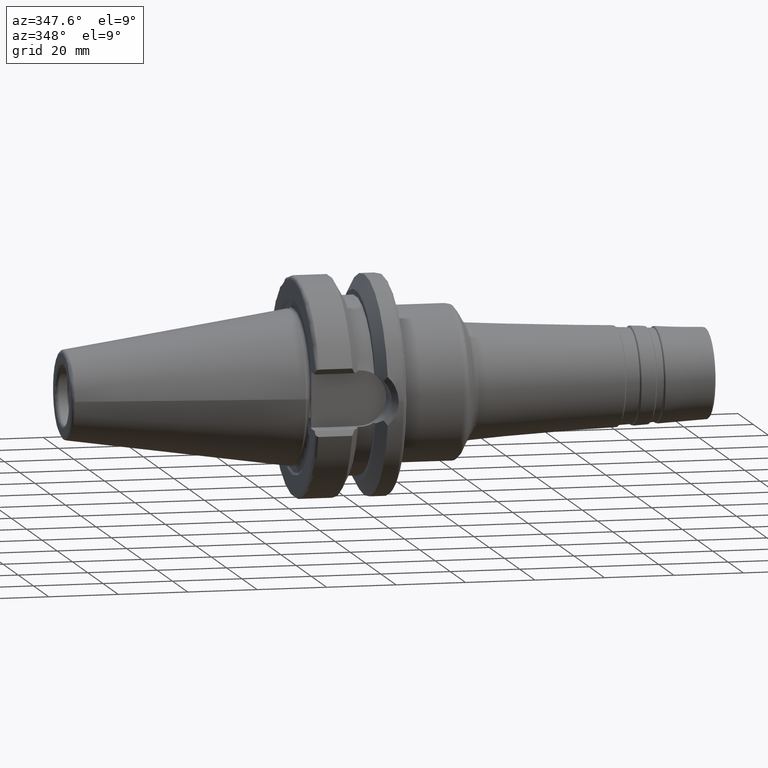
[diagram: clean part render]
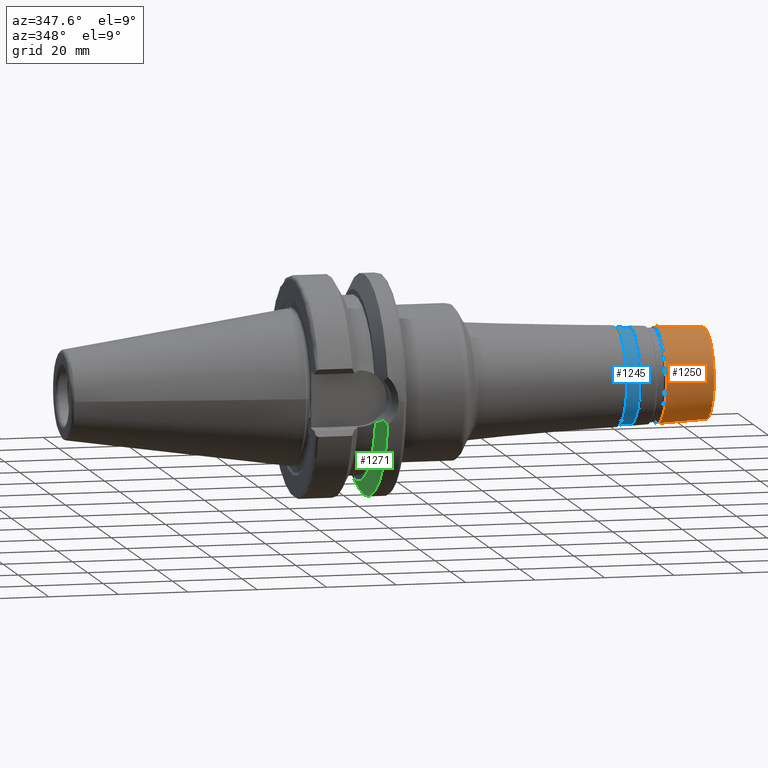
[diagram: same view with three faces highlighted in distinct colors, each labeled with its STEP entity id]
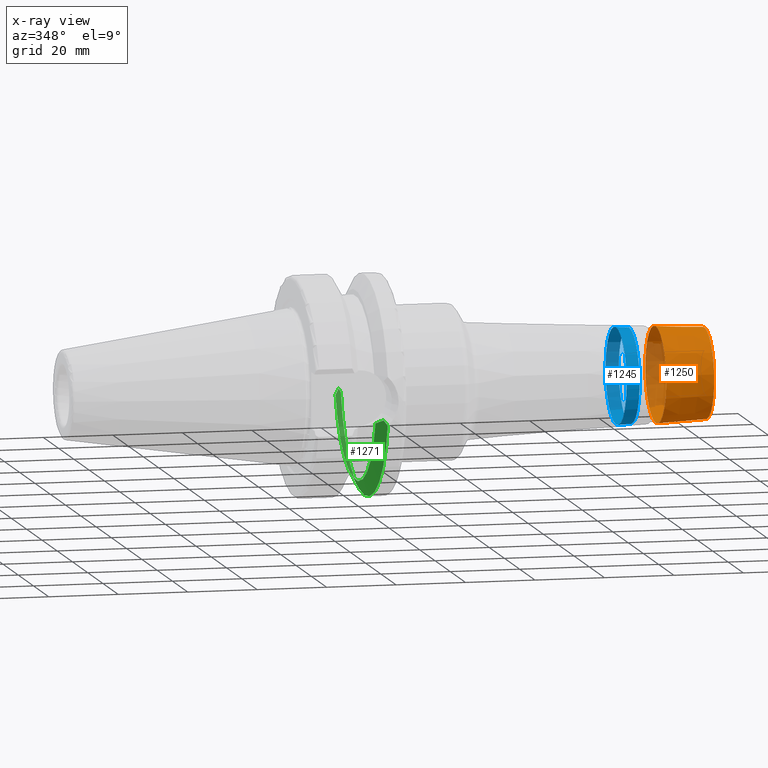
[diagram: x-ray of the same camera — body ghosted, the three highlighted faces saturated]
A machine part, auxiliary view with three faces highlighted in distinct colors.
The next image is the same camera in x-ray (body ghosted, the three faces saturated) — at least one of them is partly hidden behind the body in this view.
Their STEP definitions:

[orange] entity #1250 — the highlighted conical surface has half-angle 3 deg.
#102=LINE('',#1982,#171);
#171=VECTOR('',#1585,13.3848185972057);
#240=CONICAL_SURFACE('',#1372,13.3848185972057,0.0523598775598296);
#266=FACE_OUTER_BOUND('',#347,.T.);
#347=EDGE_LOOP('',(#875,#876,#877,#878));
#439=CIRCLE('',#1370,13.7575507230413);
#441=CIRCLE('',#1373,13.0248324840198);
#528=VERTEX_POINT('',#1976);
#529=VERTEX_POINT('',#1980);
#658=EDGE_CURVE('',#528,#528,#439,.T.);
#660=EDGE_CURVE('',#529,#529,#441,.T.);
#661=EDGE_CURVE('',#529,#528,#102,.T.);
#875=ORIENTED_EDGE('',*,*,#660,.F.);
#876=ORIENTED_EDGE('',*,*,#661,.T.);
#877=ORIENTED_EDGE('',*,*,#658,.F.);
#878=ORIENTED_EDGE('',*,*,#661,.F.);
#1250=ADVANCED_FACE('',(#266),#240,.T.);
#1370=AXIS2_PLACEMENT_3D('',#1977,#1577,#1578);
#1372=AXIS2_PLACEMENT_3D('',#1979,#1581,#1582);
#1373=AXIS2_PLACEMENT_3D('',#1981,#1583,#1584);
#1577=DIRECTION('center_axis',(-1.,0.,0.));
#1578=DIRECTION('ref_axis',(0.,0.,1.));
#1581=DIRECTION('center_axis',(-1.,0.,0.));
#1582=DIRECTION('ref_axis',(0.,0.,-1.));
#1583=DIRECTION('center_axis',(1.,0.,0.));
#1584=DIRECTION('ref_axis',(0.,0.,1.));
#1585=DIRECTION('',(-0.998629534754574,-6.40930612932368E-18,0.0523359562429436));
#1976=CARTESIAN_POINT('',(105.545071105762,-1.68481404570799E-15,13.7575507230413));
#1977=CARTESIAN_POINT('Origin',(105.545071105762,-1.68481404570799E-15,
0.));
#1979=CARTESIAN_POINT('Origin',(112.657223746739,0.,0.));
#1980=CARTESIAN_POINT('',(119.526167978121,-1.59508194109854E-15,13.0248324840198));
#1981=CARTESIAN_POINT('Origin',(119.526167978121,-1.59508194109854E-15,
0.));
#1982=CARTESIAN_POINT('',(112.657223746739,-1.63916752522359E-15,13.3848185972057));

[blue] entity #1245 — the highlighted conical surface has half-angle 3 deg.
#99=LINE('',#1961,#168);
#168=VECTOR('',#1556,13.7564541224331);
#237=CONICAL_SURFACE('',#1360,13.7564541224331,0.0523598775598302);
#261=FACE_OUTER_BOUND('',#342,.T.);
#342=EDGE_LOOP('',(#855,#856,#857,#858));
#431=CIRCLE('',#1357,13.6578254456323);
#434=CIRCLE('',#1361,13.855082799234);
#522=VERTEX_POINT('',#1954);
#524=VERTEX_POINT('',#1960);
#647=EDGE_CURVE('',#522,#522,#431,.T.);
#650=EDGE_CURVE('',#522,#524,#99,.T.);
#651=EDGE_CURVE('',#524,#524,#434,.T.);
#855=ORIENTED_EDGE('',*,*,#647,.F.);
#856=ORIENTED_EDGE('',*,*,#650,.T.);
#857=ORIENTED_EDGE('',*,*,#651,.F.);
#858=ORIENTED_EDGE('',*,*,#650,.F.);
#1245=ADVANCED_FACE('',(#261),#237,.T.);
#1357=AXIS2_PLACEMENT_3D('',#1955,#1548,#1549);
#1360=AXIS2_PLACEMENT_3D('',#1959,#1554,#1555);
#1361=AXIS2_PLACEMENT_3D('',#1962,#1557,#1558);
#1548=DIRECTION('center_axis',(1.,0.,0.));
#1549=DIRECTION('ref_axis',(0.,0.,1.));
#1554=DIRECTION('center_axis',(-1.,0.,0.));
#1555=DIRECTION('ref_axis',(0.,0.,-1.));
#1556=DIRECTION('',(-0.998629534754574,-6.40930612932375E-18,0.0523359562429442));
#1557=DIRECTION('center_axis',(-1.,0.,0.));
#1558=DIRECTION('ref_axis',(0.,0.,1.));
#1954=CARTESIAN_POINT('',(97.8942814505757,-1.67260122153069E-15,13.6578254456323));
#1955=CARTESIAN_POINT('Origin',(97.8942814505757,-1.67260122153069E-15,
0.));
#1959=CARTESIAN_POINT('Origin',(96.0123341872088,0.,0.));
#1960=CARTESIAN_POINT('',(94.1303869238419,-1.69675828020035E-15,13.855082799234));
#1961=CARTESIAN_POINT('',(96.0123341872088,-1.68467975086552E-15,13.7564541224331));
#1962=CARTESIAN_POINT('Origin',(94.1303869238419,-1.69675828020035E-15,
0.));

[green] entity #1271 — the highlighted conical surface has half-angle 60.125 deg.
#27=B_SPLINE_CURVE_WITH_KNOTS('',3,(#2091,#2092,#2093,#2094,#2095,#2096,
#2097,#2098,#2099,#2100,#2101,#2102,#2103),.UNSPECIFIED.,.F.,.F.,(4,3,3,
3,4),(0.,0.0663857987262874,0.104853023511296,0.177953491129426,0.209498394876945),
 .UNSPECIFIED.);
#33=B_SPLINE_CURVE_WITH_KNOTS('',3,(#2163,#2164,#2165,#2166,#2167,#2168),
 .UNSPECIFIED.,.F.,.F.,(4,2,4),(3.3443816511031,3.62699288756974,3.70848737461385),
 .UNSPECIFIED.);
#34=B_SPLINE_CURVE_WITH_KNOTS('',3,(#2172,#2173,#2174,#2175,#2176,#2177),
 .UNSPECIFIED.,.F.,.F.,(4,2,4),(1.4642102789956,1.54570476603971,1.82831600250635),
 .UNSPECIFIED.);
#35=B_SPLINE_CURVE_WITH_KNOTS('',3,(#2178,#2179,#2180,#2181,#2182,#2183,
#2184,#2185,#2186,#2187,#2188,#2189,#2190),.UNSPECIFIED.,.F.,.F.,(4,3,3,
3,4),(1.38777878078145E-17,0.0731680095135469,0.104649820620959,0.171142802075839,
0.209508940919759),.UNSPECIFIED.);
#244=CONICAL_SURFACE('',#1423,29.2970358274569,1.04937921276159);
#287=FACE_OUTER_BOUND('',#372,.T.);
#372=EDGE_LOOP('',(#960,#961,#962,#963,#964,#965));
#469=CIRCLE('',#1420,31.5000000000001);
#472=CIRCLE('',#1424,27.0940716549138);
#549=VERTEX_POINT('',#2089);
#550=VERTEX_POINT('',#2090);
#556=VERTEX_POINT('',#2147);
#558=VERTEX_POINT('',#2162);
#559=VERTEX_POINT('',#2169);
#560=VERTEX_POINT('',#2171);
#695=EDGE_CURVE('',#549,#550,#27,.T.);
#702=EDGE_CURVE('',#550,#556,#469,.T.);
#706=EDGE_CURVE('',#549,#558,#33,.T.);
#707=EDGE_CURVE('',#558,#559,#472,.T.);
#708=EDGE_CURVE('',#559,#560,#34,.T.);
#709=EDGE_CURVE('',#556,#560,#35,.T.);
#960=ORIENTED_EDGE('',*,*,#695,.F.);
#961=ORIENTED_EDGE('',*,*,#706,.T.);
#962=ORIENTED_EDGE('',*,*,#707,.T.);
#963=ORIENTED_EDGE('',*,*,#708,.T.);
#964=ORIENTED_EDGE('',*,*,#709,.F.);
#965=ORIENTED_EDGE('',*,*,#702,.F.);
#1271=ADVANCED_FACE('',(#287),#244,.T.);
#1420=AXIS2_PLACEMENT_3D('',#2148,#1686,#1687);
#1423=AXIS2_PLACEMENT_3D('',#2161,#1692,#1693);
#1424=AXIS2_PLACEMENT_3D('',#2170,#1694,#1695);
#1686=DIRECTION('center_axis',(1.,0.,0.));
#1687=DIRECTION('ref_axis',(0.,0.,-1.));
#1692=DIRECTION('center_axis',(1.,0.,0.));
#1693=DIRECTION('ref_axis',(0.,1.,0.));
#1694=DIRECTION('center_axis',(1.,0.,0.));
#1695=DIRECTION('ref_axis',(0.,0.,-1.));
#2089=CARTESIAN_POINT('',(20.7197593187301,-29.382324732277,-5.61358863864523));
#2090=CARTESIAN_POINT('',(21.6309636926619,-30.7261128229805,-6.93945176433102));
#2091=CARTESIAN_POINT('Ctrl Pts',(20.7197657819788,-29.3823237299493,-5.61358132195236));
#2092=CARTESIAN_POINT('Ctrl Pts',(20.8148408821884,-29.5238838511283,-5.7546101488345));
#2093=CARTESIAN_POINT('Ctrl Pts',(20.9104055783237,-29.6657166596105,-5.89544203107064));
#2094=CARTESIAN_POINT('Ctrl Pts',(21.0063031067432,-29.8076037972815,-6.03588995803085));
#2095=CARTESIAN_POINT('Ctrl Pts',(21.0618708916131,-29.8898202430217,-6.11727245369445));
#2096=CARTESIAN_POINT('Ctrl Pts',(21.1175496497856,-29.9720546777218,-6.19852652970694));
#2097=CARTESIAN_POINT('Ctrl Pts',(21.1733023497016,-30.0542624823723,-6.27961994688687));
#2098=CARTESIAN_POINT('Ctrl Pts',(21.2792509450996,-30.2104845388214,-6.43372429805168));
#2099=CARTESIAN_POINT('Ctrl Pts',(21.3857145189625,-30.3669699337808,-6.5875976402581));
#2100=CARTESIAN_POINT('Ctrl Pts',(21.4925206651177,-30.5234882138239,-6.74104749484797));
#2101=CARTESIAN_POINT('Ctrl Pts',(21.5386105152909,-30.5910302452167,-6.80726541452524));
#2102=CARTESIAN_POINT('Ctrl Pts',(21.5847636249085,-30.6585782245638,-6.87340481119639));
#2103=CARTESIAN_POINT('Ctrl Pts',(21.6309636926619,-30.7261128229805,-6.93945176433104));
#2147=CARTESIAN_POINT('',(21.6309636926619,30.7261128229805,-6.93945176433102));
#2148=CARTESIAN_POINT('Origin',(21.6309636926619,0.,0.));
#2161=CARTESIAN_POINT('Origin',(20.3654818463309,0.,0.));
#2162=CARTESIAN_POINT('',(19.1,-26.201311395455,-6.89782574439221));
#2163=CARTESIAN_POINT('Ctrl Pts',(20.7197593187301,-29.382324732277,-5.61358863864523));
#2164=CARTESIAN_POINT('Ctrl Pts',(20.3012218741369,-28.558364647748,-6.04376984297407));
#2165=CARTESIAN_POINT('Ctrl Pts',(19.867744184216,-27.7064624084632,-6.39234949299032));
#2166=CARTESIAN_POINT('Ctrl Pts',(19.3406963650697,-26.6728819297428,-6.7486710865604));
#2167=CARTESIAN_POINT('Ctrl Pts',(19.2210929544554,-26.438473693351,-6.82497151762395));
#2168=CARTESIAN_POINT('Ctrl Pts',(19.1,-26.201311395455,-6.89782574439221));
#2169=CARTESIAN_POINT('',(19.1,26.201311395455,-6.89782574439221));
#2170=CARTESIAN_POINT('Origin',(19.1,0.,0.));
#2171=CARTESIAN_POINT('',(20.7197593187301,29.382324732277,-5.61358863864523));
#2172=CARTESIAN_POINT('Ctrl Pts',(19.1,26.201311395455,-6.89782574439221));
#2173=CARTESIAN_POINT('Ctrl Pts',(19.2210929544554,26.438473693351,-6.82497151762395));
#2174=CARTESIAN_POINT('Ctrl Pts',(19.3406963650697,26.6728819297427,-6.74867108656041));
#2175=CARTESIAN_POINT('Ctrl Pts',(19.8677441842159,27.7064624084632,-6.39234949299032));
#2176=CARTESIAN_POINT('Ctrl Pts',(20.3012218741369,28.558364647748,-6.04376984297407));
#2177=CARTESIAN_POINT('Ctrl Pts',(20.7197593187301,29.382324732277,-5.61358863864523));
#2178=CARTESIAN_POINT('Ctrl Pts',(21.6309636926618,30.7261128229805,-6.93945176433104));
#2179=CARTESIAN_POINT('Ctrl Pts',(21.5238086080159,30.5694750524797,-6.78626439474683));
#2180=CARTESIAN_POINT('Ctrl Pts',(21.4169091348659,30.4127664111858,-6.63257916591966));
#2181=CARTESIAN_POINT('Ctrl Pts',(21.310456536906,30.2562241217923,-6.47857776697082));
#2182=CARTESIAN_POINT('Ctrl Pts',(21.2646534516076,30.1888690738994,-6.41231598146896));
#2183=CARTESIAN_POINT('Ctrl Pts',(21.2189325585309,30.1215446447243,-6.34599600137116));
#2184=CARTESIAN_POINT('Ctrl Pts',(21.1733066768474,30.0542689338646,-6.27963381498107));
#2185=CARTESIAN_POINT('Ctrl Pts',(21.0769398924116,29.9121753745297,-6.13946971788114));
#2186=CARTESIAN_POINT('Ctrl Pts',(20.9807965697314,29.7700032858785,-5.99882548575242));
#2187=CARTESIAN_POINT('Ctrl Pts',(20.8850589555166,29.6279802338881,-5.85787328488443));
#2188=CARTESIAN_POINT('Ctrl Pts',(20.8298188005531,29.5460335981308,-5.77654452520884));
#2189=CARTESIAN_POINT('Ctrl Pts',(20.7747129164645,29.4641363179111,-5.69511373443865));
#2190=CARTESIAN_POINT('Ctrl Pts',(20.7197698702457,29.3823300093151,-5.61361800937777));